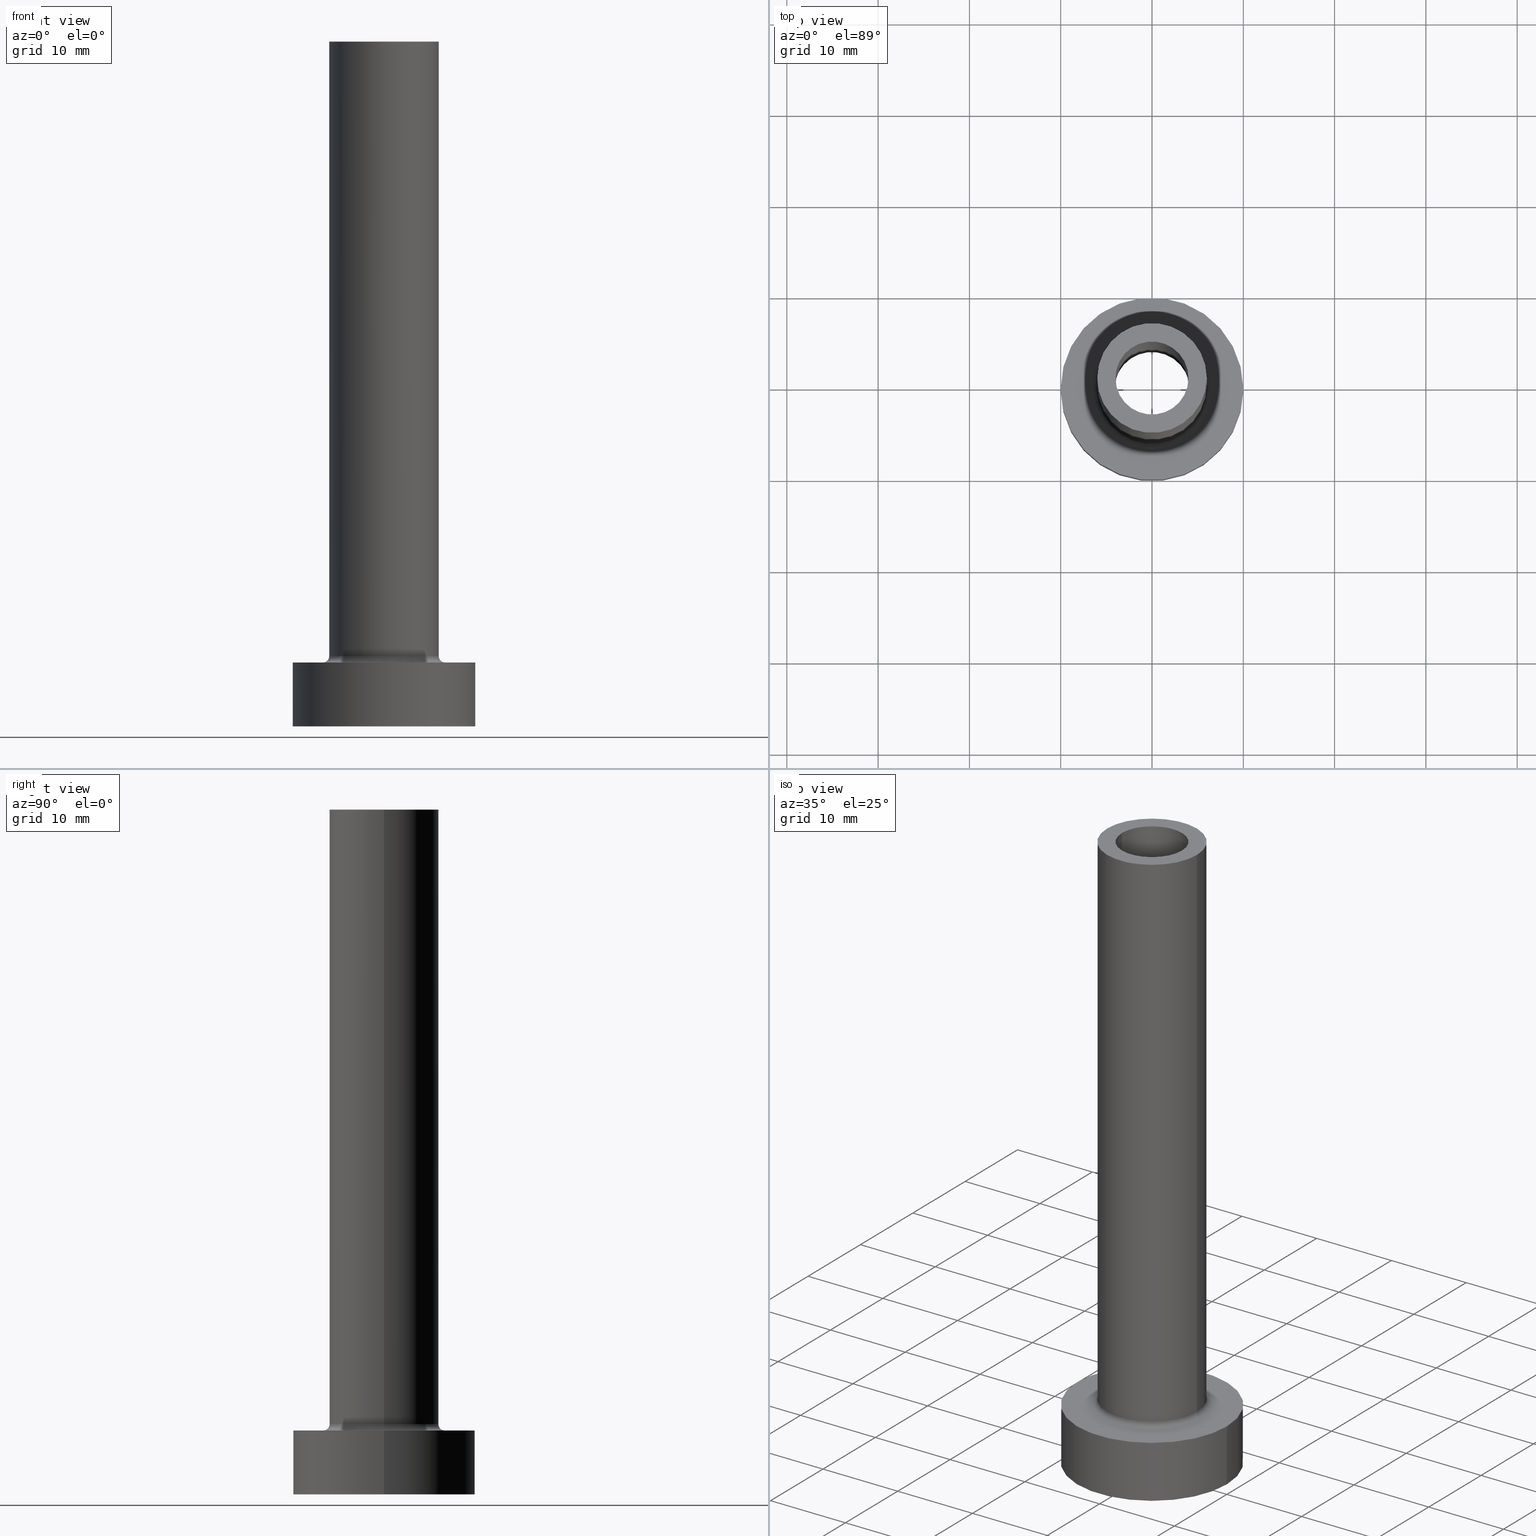
[diagram: canonical four-view strip — front | top / right | iso, engineering-drawing reading convention]
A machine part, canonical four-view strip (front | top / right | iso — engineering-drawing reading convention). The complete STEP part file that produces these views, byte-faithful:
ISO-10303-21;
HEADER;
FILE_DESCRIPTION (( 'STEP AP203' ),
    '1' );
FILE_NAME ('ccd0.STEP',
    '2023-02-13T09:11:31',
    ( '' ),
    ( '' ),
    'SwSTEP 2.0',
    'SolidWorks 2019',
    '' );
FILE_SCHEMA (( 'CONFIG_CONTROL_DESIGN' ));
ENDSEC;

DATA;
#1 = DIRECTION ( 'NONE',  ( -0.000000000000000000, -0.000000000000000000, -1.000000000000000000 ) ) ;
#2 = EDGE_CURVE ( 'NONE', #281, #367, #278, .T. ) ;
#3 = FACE_OUTER_BOUND ( 'NONE', #457, .T. ) ;
#4 = CARTESIAN_POINT ( 'NONE',  ( 0.000000000000000000, 0.000000000000000000, 75.00000000000001421 ) ) ;
#5 = AXIS2_PLACEMENT_3D ( 'NONE', #350, #36, #31 ) ;
#6 =( LENGTH_UNIT ( ) NAMED_UNIT ( * ) SI_UNIT ( .MILLI., .METRE. ) );
#7 = DIRECTION ( 'NONE',  ( 0.000000000000000000, 0.000000000000000000, 1.000000000000000000 ) ) ;
#8 = DIRECTION ( 'NONE',  ( -0.000000000000000000, -0.000000000000000000, -1.000000000000000000 ) ) ;
#9 = APPROVAL_DATE_TIME ( #189, #19 ) ;
#10 = ADVANCED_FACE ( 'NONE', ( #103 ), #384, .F. ) ;
#11 = CIRCLE ( 'NONE', #159, 4.150000000000000355 ) ;
#12 = LOCAL_TIME ( 10, 11, 31.00000000000000000, #228 ) ;
#13 = CARTESIAN_POINT ( 'NONE',  ( 0.000000000000000000, 0.000000000000000000, 0.000000000000000000 ) ) ;
#14 = ORIENTED_EDGE ( 'NONE', *, *, #193, .T. ) ;
#15 = PRODUCT_RELATED_PRODUCT_CATEGORY ( 'detail', '', ( #50 ) ) ;
#16 = COORDINATED_UNIVERSAL_TIME_OFFSET ( 1, 0, .AHEAD. ) ;
#17 = FACE_OUTER_BOUND ( 'NONE', #59, .T. ) ;
#18 = ORIENTED_EDGE ( 'NONE', *, *, #160, .F. ) ;
#19 = APPROVAL ( #115, 'NEUR�EN�' ) ;
#20 = DIRECTION ( 'NONE',  ( 0.000000000000000000, 0.000000000000000000, 1.000000000000000000 ) ) ;
#21 = VERTEX_POINT ( 'NONE', #172 ) ;
#22 = PERSON_AND_ORGANIZATION ( #227, #275 ) ;
#23 = AXIS2_PLACEMENT_3D ( 'NONE', #130, #20, #272 ) ;
#24 = DIRECTION ( 'NONE',  ( 1.000000000000000000, 0.000000000000000000, 0.000000000000000000 ) ) ;
#25 = ORIENTED_EDGE ( 'NONE', *, *, #377, .F. ) ;
#26 = APPROVAL_STATUS ( 'not_yet_approved' ) ;
#27 = CARTESIAN_POINT ( 'NONE',  ( 0.000000000000000000, 0.000000000000000000, 30.00000000000001421 ) ) ;
#28 = EDGE_LOOP ( 'NONE', ( #146, #206, #85, #25 ) ) ;
#29 = CIRCLE ( 'NONE', #436, 6.000000000000000888 ) ;
#30 = ORIENTED_EDGE ( 'NONE', *, *, #442, .T. ) ;
#31 = DIRECTION ( 'NONE',  ( 1.000000000000000000, 0.000000000000000000, 0.000000000000000000 ) ) ;
#32 = CC_DESIGN_APPROVAL ( #152, ( #296 ) ) ;
#33 = CC_DESIGN_PERSON_AND_ORGANIZATION_ASSIGNMENT ( #92, #126, ( #117 ) ) ;
#34 = DIRECTION ( 'NONE',  ( -1.000000000000000000, 0.000000000000000000, 0.000000000000000000 ) ) ;
#35 = EDGE_CURVE ( 'NONE', #157, #337, #100, .T. ) ;
#36 = DIRECTION ( 'NONE',  ( 0.000000000000000000, 0.000000000000000000, 1.000000000000000000 ) ) ;
#37 = TOROIDAL_SURFACE ( 'NONE', #295, 6.700000000000001066, 0.6999999999999999556 ) ;
#38 = LINE ( 'NONE', #179, #453 ) ;
#39 = PERSON_AND_ORGANIZATION ( #227, #275 ) ;
#40 = LINE ( 'NONE', #438, #78 ) ;
#41 = DIRECTION ( 'NONE',  ( 0.000000000000000000, 0.000000000000000000, 1.000000000000000000 ) ) ;
#42 = AXIS2_PLACEMENT_3D ( 'NONE', #394, #284, #34 ) ;
#43 = CARTESIAN_POINT ( 'NONE',  ( -6.000000000000000888, 0.000000000000000000, 75.00000000000001421 ) ) ;
#44 = CARTESIAN_POINT ( 'NONE',  ( 6.000000000000000888, 7.347880794884120722E-16, 75.00000000000001421 ) ) ;
#45 =( NAMED_UNIT ( * ) SI_UNIT ( $, .STERADIAN. ) SOLID_ANGLE_UNIT ( ) );
#46 = EDGE_CURVE ( 'NONE', #216, #410, #40, .T. ) ;
#47 = CYLINDRICAL_SURFACE ( 'NONE', #114, 4.000000000000000000 ) ;
#48 = CALENDAR_DATE ( 2023, 13, 2 ) ;
#49 = ORIENTED_EDGE ( 'NONE', *, *, #63, .F. ) ;
#50 = PRODUCT ( 'ccd0', 'ccd0', '', ( #154 ) ) ;
#51 = CIRCLE ( 'NONE', #86, 10.00000000000000000 ) ;
#52 = LOCAL_TIME ( 10, 11, 31.00000000000000000, #16 ) ;
#53 = ORIENTED_EDGE ( 'NONE', *, *, #433, .T. ) ;
#54 = EDGE_CURVE ( 'NONE', #157, #244, #385, .T. ) ;
#55 = EDGE_LOOP ( 'NONE', ( #18, #351 ) ) ;
#56 = APPROVAL_STATUS ( 'not_yet_approved' ) ;
#57 = AXIS2_PLACEMENT_3D ( 'NONE', #329, #1, #288 ) ;
#58 = DIRECTION ( 'NONE',  ( 1.000000000000000000, 0.000000000000000000, 0.000000000000000000 ) ) ;
#59 = EDGE_LOOP ( 'NONE', ( #124, #321, #96, #233 ) ) ;
#60 = VECTOR ( 'NONE', #441, 1000.000000000000000 ) ;
#61 = DIRECTION ( 'NONE',  ( 0.000000000000000000, 0.000000000000000000, 1.000000000000000000 ) ) ;
#62 = ORIENTED_EDGE ( 'NONE', *, *, #209, .F. ) ;
#63 = EDGE_CURVE ( 'NONE', #444, #281, #140, .T. ) ;
#64 = EDGE_LOOP ( 'NONE', ( #452, #273 ) ) ;
#65 = DIRECTION ( 'NONE',  ( -0.000000000000000000, -0.000000000000000000, -1.000000000000000000 ) ) ;
#66 = CC_DESIGN_PERSON_AND_ORGANIZATION_ASSIGNMENT ( #297, #333, ( #296 ) ) ;
#67 = FACE_BOUND ( 'NONE', #264, .T. ) ;
#68 = VERTEX_POINT ( 'NONE', #255 ) ;
#69 = VECTOR ( 'NONE', #323, 1000.000000000000000 ) ;
#70 = DIRECTION ( 'NONE',  ( 0.000000000000000000, 0.000000000000000000, 1.000000000000000000 ) ) ;
#71 = DIRECTION ( 'NONE',  ( 1.000000000000000000, 0.000000000000000000, 0.000000000000000000 ) ) ;
#72 = AXIS2_PLACEMENT_3D ( 'NONE', #395, #73, #346 ) ;
#73 = DIRECTION ( 'NONE',  ( -0.000000000000000000, -0.000000000000000000, -1.000000000000000000 ) ) ;
#74 = LOCAL_TIME ( 10, 11, 31.00000000000000000, #196 ) ;
#75 = ADVANCED_FACE ( 'NONE', ( #225 ), #47, .F. ) ;
#76 = DIRECTION ( 'NONE',  ( 0.000000000000000000, 0.000000000000000000, 1.000000000000000000 ) ) ;
#77 = CARTESIAN_POINT ( 'NONE',  ( 0.000000000000000000, 0.000000000000000000, 75.00000000000001421 ) ) ;
#78 = VECTOR ( 'NONE', #83, 1000.000000000000000 ) ;
#79 = CARTESIAN_POINT ( 'NONE',  ( 0.000000000000000000, 0.000000000000000000, 0.000000000000000000 ) ) ;
#80 = CIRCLE ( 'NONE', #23, 4.000000000000000000 ) ;
#81 = ADVANCED_FACE ( 'NONE', ( #192 ), #294, .T. ) ;
#82 = LINE ( 'NONE', #43, #69 ) ;
#83 = DIRECTION ( 'NONE',  ( 0.000000000000000000, 0.000000000000000000, -1.000000000000000000 ) ) ;
#84 = DIRECTION ( 'NONE',  ( 1.000000000000000000, 0.000000000000000000, 0.000000000000000000 ) ) ;
#85 = ORIENTED_EDGE ( 'NONE', *, *, #280, .T. ) ;
#86 = AXIS2_PLACEMENT_3D ( 'NONE', #320, #343, #245 ) ;
#87 = FACE_BOUND ( 'NONE', #64, .T. ) ;
#88 = ORIENTED_EDGE ( 'NONE', *, *, #183, .T. ) ;
#89 = CALENDAR_DATE ( 2023, 13, 2 ) ;
#90 = CARTESIAN_POINT ( 'NONE',  ( -10.00000000000000000, 0.000000000000000000, 7.000000000000000000 ) ) ;
#91 = ORIENTED_EDGE ( 'NONE', *, *, #107, .T. ) ;
#92 = PERSON_AND_ORGANIZATION ( #227, #275 ) ;
#93 = DIRECTION ( 'NONE',  ( 1.000000000000000000, 0.000000000000000000, -0.000000000000000000 ) ) ;
#94 = ORIENTED_EDGE ( 'NONE', *, *, #341, .T. ) ;
#95 = CC_DESIGN_APPROVAL ( #435, ( #117 ) ) ;
#96 = ORIENTED_EDGE ( 'NONE', *, *, #46, .T. ) ;
#97 = DIRECTION ( 'NONE',  ( 0.000000000000000000, 0.000000000000000000, 1.000000000000000000 ) ) ;
#98 = PRODUCT_DEFINITION ( 'NEZN�M�', '', #296, #266 ) ;
#99 = VERTEX_POINT ( 'NONE', #324 ) ;
#100 = LINE ( 'NONE', #406, #214 ) ;
#101 = AXIS2_PLACEMENT_3D ( 'NONE', #158, #304, #163 ) ;
#102 = DIRECTION ( 'NONE',  ( 1.000000000000000000, 0.000000000000000000, 0.000000000000000000 ) ) ;
#103 = FACE_OUTER_BOUND ( 'NONE', #199, .T. ) ;
#104 = PRODUCT_DEFINITION_SHAPE ( 'NONE', 'NONE',  #98 ) ;
#105 = DIRECTION ( 'NONE',  ( -1.000000000000000000, 0.000000000000000000, 0.000000000000000000 ) ) ;
#106 = ORIENTED_EDGE ( 'NONE', *, *, #2, .F. ) ;
#107 = EDGE_CURVE ( 'NONE', #99, #367, #165, .T. ) ;
#108 = CARTESIAN_POINT ( 'NONE',  ( 0.000000000000000000, 0.000000000000000000, 7.000000000000000000 ) ) ;
#109 = DIRECTION ( 'NONE',  ( 1.224646799147353207E-16, 1.000000000000000000, -0.000000000000000000 ) ) ;
#110 = AXIS2_PLACEMENT_3D ( 'NONE', #77, #8, #223 ) ;
#111 = CALENDAR_DATE ( 2023, 13, 2 ) ;
#112 = DIRECTION ( 'NONE',  ( 1.000000000000000000, 0.000000000000000000, 0.000000000000000000 ) ) ;
#113 = FACE_BOUND ( 'NONE', #55, .T. ) ;
#114 = AXIS2_PLACEMENT_3D ( 'NONE', #4, #118, #190 ) ;
#115 = APPROVAL_STATUS ( 'not_yet_approved' ) ;
#116 = TOROIDAL_SURFACE ( 'NONE', #5, 6.700000000000001066, 0.6999999999999999556 ) ;
#117 = SECURITY_CLASSIFICATION ( '', '', #303 ) ;
#118 = DIRECTION ( 'NONE',  ( 0.000000000000000000, 0.000000000000000000, -1.000000000000000000 ) ) ;
#119 = PERSON_AND_ORGANIZATION_ROLE ( 'creator' ) ;
#120 = PLANE ( 'NONE',  #340 ) ;
#121 = UNCERTAINTY_MEASURE_WITH_UNIT (LENGTH_MEASURE( 1.000000000000000082E-05 ), #6, 'distance_accuracy_value', 'NONE');
#122 = ORIENTED_EDGE ( 'NONE', *, *, #54, .T. ) ;
#123 = DATE_AND_TIME ( #364, #12 ) ;
#124 = ORIENTED_EDGE ( 'NONE', *, *, #299, .F. ) ;
#125 = AXIS2_PLACEMENT_3D ( 'NONE', #188, #153, #112 ) ;
#126 = PERSON_AND_ORGANIZATION_ROLE ( 'classification_officer' ) ;
#127 = CARTESIAN_POINT ( 'NONE',  ( 0.000000000000000000, 0.000000000000000000, 30.00000000000001421 ) ) ;
#128 = ORIENTED_EDGE ( 'NONE', *, *, #35, .F. ) ;
#129 = DATE_TIME_ROLE ( 'creation_date' ) ;
#130 = CARTESIAN_POINT ( 'NONE',  ( 0.000000000000000000, 0.000000000000000000, 30.00000000000001421 ) ) ;
#131 = VERTEX_POINT ( 'NONE', #398 ) ;
#132 = EDGE_CURVE ( 'NONE', #21, #305, #29, .T. ) ;
#133 = APPROVAL_DATE_TIME ( #191, #435 ) ;
#134 = CARTESIAN_POINT ( 'NONE',  ( 0.000000000000000000, 0.000000000000000000, 30.00000000000001421 ) ) ;
#135 = ORIENTED_EDGE ( 'NONE', *, *, #370, .T. ) ;
#136 = LINE ( 'NONE', #171, #426 ) ;
#137 = LOCAL_TIME ( 10, 11, 31.00000000000000000, #362 ) ;
#138 = EDGE_CURVE ( 'NONE', #68, #197, #287, .T. ) ;
#139 = DIRECTION ( 'NONE',  ( 0.000000000000000000, 0.000000000000000000, 1.000000000000000000 ) ) ;
#140 = CIRCLE ( 'NONE', #402, 0.7000000000000000666 ) ;
#141 = LINE ( 'NONE', #382, #306 ) ;
#142 = CYLINDRICAL_SURFACE ( 'NONE', #319, 10.00000000000000000 ) ;
#143 = CIRCLE ( 'NONE', #404, 4.000000000000000000 ) ;
#144 = FACE_OUTER_BOUND ( 'NONE', #285, .T. ) ;
#145 = EDGE_CURVE ( 'NONE', #305, #444, #149, .T. ) ;
#146 = ORIENTED_EDGE ( 'NONE', *, *, #54, .F. ) ;
#147 = APPLICATION_CONTEXT ( 'configuration controlled 3d designs of mechanical parts and assemblies' ) ;
#148 = PERSON_AND_ORGANIZATION ( #227, #275 ) ;
#149 = LINE ( 'NONE', #44, #60 ) ;
#150 = CIRCLE ( 'NONE', #427, 6.700000000000001066 ) ;
#151 = APPLICATION_PROTOCOL_DEFINITION ( 'international standard', 'config_control_design', 1994, #147 ) ;
#152 = APPROVAL ( #56, 'NEUR�EN�' ) ;
#153 = DIRECTION ( 'NONE',  ( 0.000000000000000000, 0.000000000000000000, 1.000000000000000000 ) ) ;
#154 = MECHANICAL_CONTEXT ( 'NONE', #147, 'mechanical' ) ;
#155 = DIRECTION ( 'NONE',  ( 0.000000000000000000, -1.000000000000000000, 0.000000000000000000 ) ) ;
#156 = ADVANCED_FACE ( 'NONE', ( #257 ), #400, .T. ) ;
#157 = VERTEX_POINT ( 'NONE', #327 ) ;
#158 = CARTESIAN_POINT ( 'NONE',  ( 0.000000000000000000, 0.000000000000000000, 7.000000000000000000 ) ) ;
#159 = AXIS2_PLACEMENT_3D ( 'NONE', #251, #243, #175 ) ;
#160 = EDGE_CURVE ( 'NONE', #197, #68, #282, .T. ) ;
#161 = ORIENTED_EDGE ( 'NONE', *, *, #242, .F. ) ;
#162 = APPROVAL_DATE_TIME ( #123, #152 ) ;
#163 = DIRECTION ( 'NONE',  ( 1.000000000000000000, 0.000000000000000000, 0.000000000000000000 ) ) ;
#164 = ORIENTED_EDGE ( 'NONE', *, *, #138, .T. ) ;
#165 = CIRCLE ( 'NONE', #173, 0.7000000000000000666 ) ;
#166 = DIRECTION ( 'NONE',  ( -0.000000000000000000, -0.000000000000000000, -1.000000000000000000 ) ) ;
#167 = EDGE_LOOP ( 'NONE', ( #342, #30 ) ) ;
#168 = APPLICATION_CONTEXT ( 'configuration controlled 3d designs of mechanical parts and assemblies' ) ;
#169 = FACE_OUTER_BOUND ( 'NONE', #448, .T. ) ;
#170 = CC_DESIGN_APPROVAL ( #19, ( #98 ) ) ;
#171 = CARTESIAN_POINT ( 'NONE',  ( 4.000000000000000000, 4.898587196589411843E-16, 75.00000000000001421 ) ) ;
#172 = CARTESIAN_POINT ( 'NONE',  ( -6.000000000000000888, 0.000000000000000000, 75.00000000000001421 ) ) ;
#173 = AXIS2_PLACEMENT_3D ( 'NONE', #185, #109, #182 ) ;
#174 = CARTESIAN_POINT ( 'NONE',  ( 4.150000000000000355, 5.082284216461515156E-16, 41.73797256769670838 ) ) ;
#175 = DIRECTION ( 'NONE',  ( 1.000000000000000000, 0.000000000000000000, 0.000000000000000000 ) ) ;
#176 = CIRCLE ( 'NONE', #369, 6.000000000000000888 ) ;
#177 = EDGE_CURVE ( 'NONE', #286, #381, #80, .T. ) ;
#178 = ORIENTED_EDGE ( 'NONE', *, *, #2, .T. ) ;
#179 = CARTESIAN_POINT ( 'NONE',  ( -4.000000000000000000, 0.000000000000000000, 75.00000000000001421 ) ) ;
#180 = ORIENTED_EDGE ( 'NONE', *, *, #377, .T. ) ;
#181 = DIRECTION ( 'NONE',  ( 0.000000000000000000, 0.000000000000000000, 1.000000000000000000 ) ) ;
#182 = DIRECTION ( 'NONE',  ( -1.000000000000000000, 1.224646799147353454E-16, 0.000000000000000000 ) ) ;
#183 = EDGE_CURVE ( 'NONE', #216, #429, #396, .T. ) ;
#184 = DIRECTION ( 'NONE',  ( 0.000000000000000000, 0.000000000000000000, -1.000000000000000000 ) ) ;
#185 = CARTESIAN_POINT ( 'NONE',  ( -6.700000000000001066, 8.205133554287267548E-16, 7.699999999999998401 ) ) ;
#186 = AXIS2_PLACEMENT_3D ( 'NONE', #431, #97, #102 ) ;
#187 = CARTESIAN_POINT ( 'NONE',  ( 0.000000000000000000, 0.000000000000000000, 75.00000000000001421 ) ) ;
#188 = CARTESIAN_POINT ( 'NONE',  ( 0.000000000000000000, 0.000000000000000000, 75.00000000000001421 ) ) ;
#189 = DATE_AND_TIME ( #111, #137 ) ;
#190 = DIRECTION ( 'NONE',  ( -1.000000000000000000, 0.000000000000000000, 0.000000000000000000 ) ) ;
#191 = DATE_AND_TIME ( #48, #422 ) ;
#192 = FACE_OUTER_BOUND ( 'NONE', #271, .T. ) ;
#193 = EDGE_CURVE ( 'NONE', #418, #410, #240, .T. ) ;
#194 = ORIENTED_EDGE ( 'NONE', *, *, #183, .F. ) ;
#195 = AXIS2_PLACEMENT_3D ( 'NONE', #134, #263, #84 ) ;
#196 = COORDINATED_UNIVERSAL_TIME_OFFSET ( 1, 0, .AHEAD. ) ;
#197 = VERTEX_POINT ( 'NONE', #417 ) ;
#198 = DIRECTION ( 'NONE',  ( -1.000000000000000000, 0.000000000000000000, 0.000000000000000000 ) ) ;
#199 = EDGE_LOOP ( 'NONE', ( #88, #252, #14, #387 ) ) ;
#200 = ADVANCED_FACE ( 'NONE', ( #87, #309 ), #120, .F. ) ;
#201 = CARTESIAN_POINT ( 'NONE',  ( 0.000000000000000000, 0.000000000000000000, 7.000000000000000000 ) ) ;
#202 = ORIENTED_EDGE ( 'NONE', *, *, #107, .F. ) ;
#203 = CIRCLE ( 'NONE', #458, 6.000000000000000888 ) ;
#204 = ORIENTED_EDGE ( 'NONE', *, *, #347, .F. ) ;
#205 = CARTESIAN_POINT ( 'NONE',  ( 0.000000000000000000, 0.000000000000000000, 7.000000000000000000 ) ) ;
#206 = ORIENTED_EDGE ( 'NONE', *, *, #35, .T. ) ;
#207 = CARTESIAN_POINT ( 'NONE',  ( 0.000000000000000000, 0.000000000000000000, 7.699999999999998401 ) ) ;
#208 = CARTESIAN_POINT ( 'NONE',  ( 0.000000000000000000, 0.000000000000000000, 41.73797256769670838 ) ) ;
#209 = EDGE_CURVE ( 'NONE', #244, #157, #254, .T. ) ;
#210 = CIRCLE ( 'NONE', #186, 6.000000000000000888 ) ;
#211 = CARTESIAN_POINT ( 'NONE',  ( 0.000000000000000000, 0.000000000000000000, 30.00000000000001421 ) ) ;
#212 = DIRECTION ( 'NONE',  ( -1.000000000000000000, 0.000000000000000000, 0.000000000000000000 ) ) ;
#213 = EDGE_CURVE ( 'NONE', #429, #216, #412, .T. ) ;
#214 = VECTOR ( 'NONE', #366, 1000.000000000000000 ) ;
#215 = FACE_BOUND ( 'NONE', #267, .T. ) ;
#216 = VERTEX_POINT ( 'NONE', #230 ) ;
#217 = CARTESIAN_POINT ( 'NONE',  ( 0.000000000000000000, 0.000000000000000000, 75.00000000000001421 ) ) ;
#218 = AXIS2_PLACEMENT_3D ( 'NONE', #357, #334, #307 ) ;
#219 = DIRECTION ( 'NONE',  ( 1.000000000000000000, 0.000000000000000000, 0.000000000000000000 ) ) ;
#220 = DIRECTION ( 'NONE',  ( 1.000000000000000000, 0.000000000000000000, 0.000000000000000000 ) ) ;
#221 = ADVANCED_FACE ( 'NONE', ( #17 ), #446, .F. ) ;
#222 = PLANE ( 'NONE',  #380 ) ;
#223 = DIRECTION ( 'NONE',  ( -1.000000000000000000, 0.000000000000000000, 0.000000000000000000 ) ) ;
#224 = DIRECTION ( 'NONE',  ( 0.000000000000000000, 0.000000000000000000, 1.000000000000000000 ) ) ;
#225 = FACE_OUTER_BOUND ( 'NONE', #274, .T. ) ;
#226 = CARTESIAN_POINT ( 'NONE',  ( 0.000000000000000000, 0.000000000000000000, 7.000000000000000000 ) ) ;
#227 = PERSON ( 'NEUR�EN�', 'NEUR�EN�', 'NEUR�EN�', ('NEUR�EN�'), ('NEUR�EN�'), ('NEUR�EN�') ) ;
#228 = COORDINATED_UNIVERSAL_TIME_OFFSET ( 1, 0, .AHEAD. ) ;
#229 = CC_DESIGN_PERSON_AND_ORGANIZATION_ASSIGNMENT ( #378, #119, ( #296 ) ) ;
#230 = CARTESIAN_POINT ( 'NONE',  ( -4.150000000000000355, 0.000000000000000000, 30.00000000000001421 ) ) ;
#231 = ORIENTED_EDGE ( 'NONE', *, *, #242, .T. ) ;
#232 = APPROVAL_PERSON_ORGANIZATION ( #437, #19, #405 ) ;
#233 = ORIENTED_EDGE ( 'NONE', *, *, #260, .T. ) ;
#234 = CC_DESIGN_DATE_AND_TIME_ASSIGNMENT ( #414, #129, ( #98 ) ) ;
#235 = DATE_TIME_ROLE ( 'classification_date' ) ;
#236 = FACE_OUTER_BOUND ( 'NONE', #28, .T. ) ;
#237 = ORIENTED_EDGE ( 'NONE', *, *, #213, .F. ) ;
#238 = PERSON_AND_ORGANIZATION ( #227, #275 ) ;
#239 = ORIENTED_EDGE ( 'NONE', *, *, #160, .T. ) ;
#240 = CIRCLE ( 'NONE', #291, 4.150000000000000355 ) ;
#241 = ORIENTED_EDGE ( 'NONE', *, *, #383, .T. ) ;
#242 = EDGE_CURVE ( 'NONE', #131, #337, #360, .T. ) ;
#243 = DIRECTION ( 'NONE',  ( -0.000000000000000000, -0.000000000000000000, -1.000000000000000000 ) ) ;
#244 = VERTEX_POINT ( 'NONE', #90 ) ;
#245 = DIRECTION ( 'NONE',  ( 1.000000000000000000, 0.000000000000000000, 0.000000000000000000 ) ) ;
#246 = DIRECTION ( 'NONE',  ( 0.000000000000000000, 0.000000000000000000, -1.000000000000000000 ) ) ;
#247 = AXIS2_PLACEMENT_3D ( 'NONE', #389, #139, #428 ) ;
#248 = CARTESIAN_POINT ( 'NONE',  ( 4.000000000000000000, 4.898587196589411843E-16, 30.00000000000001421 ) ) ;
#249 = ADVANCED_FACE ( 'NONE', ( #236 ), #375, .T. ) ;
#250 = CARTESIAN_POINT ( 'NONE',  ( -6.700000000000001066, 8.205133554287267548E-16, 6.999999999999999112 ) ) ;
#251 = CARTESIAN_POINT ( 'NONE',  ( 0.000000000000000000, 0.000000000000000000, 0.000000000000000000 ) ) ;
#252 = ORIENTED_EDGE ( 'NONE', *, *, #299, .T. ) ;
#253 = CARTESIAN_POINT ( 'NONE',  ( 0.000000000000000000, 0.000000000000000000, 7.699999999999998401 ) ) ;
#254 = CIRCLE ( 'NONE', #101, 10.00000000000000000 ) ;
#255 = CARTESIAN_POINT ( 'NONE',  ( 4.000000000000000000, 4.898587196589411843E-16, 75.00000000000001421 ) ) ;
#256 = APPROVAL_PERSON_ORGANIZATION ( #22, #435, #368 ) ;
#257 = FACE_OUTER_BOUND ( 'NONE', #310, .T. ) ;
#258 = CARTESIAN_POINT ( 'NONE',  ( 4.150000000000000355, 5.082284216461515156E-16, 0.000000000000000000 ) ) ;
#259 = AXIS2_PLACEMENT_3D ( 'NONE', #270, #61, #415 ) ;
#260 = EDGE_CURVE ( 'NONE', #410, #418, #11, .T. ) ;
#261 = DIRECTION ( 'NONE',  ( 0.000000000000000000, 0.000000000000000000, 1.000000000000000000 ) ) ;
#262 = CALENDAR_DATE ( 2023, 13, 2 ) ;
#263 = DIRECTION ( 'NONE',  ( 0.000000000000000000, 0.000000000000000000, 1.000000000000000000 ) ) ;
#264 = EDGE_LOOP ( 'NONE', ( #449, #308 ) ) ;
#265 = CC_DESIGN_PERSON_AND_ORGANIZATION_ASSIGNMENT ( #148, #290, ( #50 ) ) ;
#266 = DESIGN_CONTEXT ( 'detailed design', #168, 'design' ) ;
#267 = EDGE_LOOP ( 'NONE', ( #178, #135 ) ) ;
#268 = AXIS2_PLACEMENT_3D ( 'NONE', #108, #181, #399 ) ;
#269 = MANIFOLD_SOLID_BREP ( 'Odebrat vysunut�m4', #365 ) ;
#270 = CARTESIAN_POINT ( 'NONE',  ( 0.000000000000000000, 0.000000000000000000, 0.000000000000000000 ) ) ;
#271 = EDGE_LOOP ( 'NONE', ( #425, #344, #53, #94 ) ) ;
#272 = DIRECTION ( 'NONE',  ( 1.000000000000000000, 0.000000000000000000, 0.000000000000000000 ) ) ;
#273 = ORIENTED_EDGE ( 'NONE', *, *, #177, .T. ) ;
#274 = EDGE_LOOP ( 'NONE', ( #339, #164, #379, #376 ) ) ;
#275 = ORGANIZATION ( 'NEUR�EN�', 'NEUR�EN�', '' ) ;
#276 = DIRECTION ( 'NONE',  ( -0.000000000000000000, -0.000000000000000000, -1.000000000000000000 ) ) ;
#277 = FACE_OUTER_BOUND ( 'NONE', #302, .T. ) ;
#278 = CIRCLE ( 'NONE', #72, 6.700000000000001066 ) ;
#279 = DIRECTION ( 'NONE',  ( 1.000000000000000000, 0.000000000000000000, 0.000000000000000000 ) ) ;
#280 = EDGE_CURVE ( 'NONE', #337, #131, #51, .T. ) ;
#281 = VERTEX_POINT ( 'NONE', #454 ) ;
#282 = CIRCLE ( 'NONE', #218, 4.000000000000000000 ) ;
#283 = CC_DESIGN_SECURITY_CLASSIFICATION ( #117, ( #296 ) ) ;
#284 = DIRECTION ( 'NONE',  ( 0.000000000000000000, 0.000000000000000000, -1.000000000000000000 ) ) ;
#285 = EDGE_LOOP ( 'NONE', ( #239, #416, #204, #373 ) ) ;
#286 = VERTEX_POINT ( 'NONE', #248 ) ;
#287 = CIRCLE ( 'NONE', #125, 4.000000000000000000 ) ;
#288 = DIRECTION ( 'NONE',  ( -1.000000000000000000, 0.000000000000000000, 0.000000000000000000 ) ) ;
#289 = ADVANCED_FACE ( 'NONE', ( #349 ), #142, .T. ) ;
#290 = PERSON_AND_ORGANIZATION_ROLE ( 'design_owner' ) ;
#291 = AXIS2_PLACEMENT_3D ( 'NONE', #13, #298, #24 ) ;
#292 = FACE_OUTER_BOUND ( 'NONE', #167, .T. ) ;
#293 = PERSON_AND_ORGANIZATION_ROLE ( 'creator' ) ;
#294 = CYLINDRICAL_SURFACE ( 'NONE', #57, 6.000000000000000888 ) ;
#295 = AXIS2_PLACEMENT_3D ( 'NONE', #253, #328, #397 ) ;
#296 = PRODUCT_DEFINITION_FORMATION_WITH_SPECIFIED_SOURCE ( 'LIBOVOLN�', '', #50, .NOT_KNOWN. ) ;
#297 = PERSON_AND_ORGANIZATION ( #227, #275 ) ;
#298 = DIRECTION ( 'NONE',  ( -0.000000000000000000, -0.000000000000000000, -1.000000000000000000 ) ) ;
#299 = EDGE_CURVE ( 'NONE', #429, #418, #313, .T. ) ;
#300 = SHAPE_DEFINITION_REPRESENTATION ( #104, #330 ) ;
#301 = DIRECTION ( 'NONE',  ( 0.000000000000000000, 0.000000000000000000, 1.000000000000000000 ) ) ;
#302 = EDGE_LOOP ( 'NONE', ( #161, #317 ) ) ;
#303 = SECURITY_CLASSIFICATION_LEVEL ( 'unclassified' ) ;
#304 = DIRECTION ( 'NONE',  ( 0.000000000000000000, 0.000000000000000000, 1.000000000000000000 ) ) ;
#305 = VERTEX_POINT ( 'NONE', #460 ) ;
#306 = VECTOR ( 'NONE', #65, 1000.000000000000000 ) ;
#307 = DIRECTION ( 'NONE',  ( 1.000000000000000000, 0.000000000000000000, 0.000000000000000000 ) ) ;
#308 = ORIENTED_EDGE ( 'NONE', *, *, #193, .F. ) ;
#309 = FACE_OUTER_BOUND ( 'NONE', #390, .T. ) ;
#310 = EDGE_LOOP ( 'NONE', ( #420, #413, #241, #392 ) ) ;
#311 = DIRECTION ( 'NONE',  ( 0.000000000000000000, 0.000000000000000000, -1.000000000000000000 ) ) ;
#312 = APPROVAL_PERSON_ORGANIZATION ( #238, #152, #372 ) ;
#313 = LINE ( 'NONE', #174, #439 ) ;
#314 = CC_DESIGN_PERSON_AND_ORGANIZATION_ASSIGNMENT ( #39, #293, ( #98 ) ) ;
#315 = CARTESIAN_POINT ( 'NONE',  ( -4.000000000000000000, 0.000000000000000000, 30.00000000000001421 ) ) ;
#316 = PLANE ( 'NONE',  #247 ) ;
#317 = ORIENTED_EDGE ( 'NONE', *, *, #280, .F. ) ;
#318 = EDGE_LOOP ( 'NONE', ( #202, #335, #461, #371 ) ) ;
#319 = AXIS2_PLACEMENT_3D ( 'NONE', #386, #166, #455 ) ;
#320 = CARTESIAN_POINT ( 'NONE',  ( 0.000000000000000000, 0.000000000000000000, 0.000000000000000000 ) ) ;
#321 = ORIENTED_EDGE ( 'NONE', *, *, #213, .T. ) ;
#322 = ADVANCED_FACE ( 'NONE', ( #67, #277 ), #316, .F. ) ;
#323 = DIRECTION ( 'NONE',  ( -0.000000000000000000, -0.000000000000000000, -1.000000000000000000 ) ) ;
#324 = CARTESIAN_POINT ( 'NONE',  ( -6.000000000000000888, 0.000000000000000000, 7.699999999999998401 ) ) ;
#325 = DIRECTION ( 'NONE',  ( 1.000000000000000000, 0.000000000000000000, 0.000000000000000000 ) ) ;
#326 = AXIS2_PLACEMENT_3D ( 'NONE', #79, #224, #219 ) ;
#327 = CARTESIAN_POINT ( 'NONE',  ( 10.00000000000000000, 1.224646799147353256E-15, 7.000000000000000000 ) ) ;
#328 = DIRECTION ( 'NONE',  ( 0.000000000000000000, 0.000000000000000000, 1.000000000000000000 ) ) ;
#329 = CARTESIAN_POINT ( 'NONE',  ( 0.000000000000000000, 0.000000000000000000, 75.00000000000001421 ) ) ;
#330 = ADVANCED_BREP_SHAPE_REPRESENTATION ( 'ccd0', ( #269, #326 ), #353 ) ;
#331 = PLANE ( 'NONE',  #268 ) ;
#332 = DIRECTION ( 'NONE',  ( 0.000000000000000000, 0.000000000000000000, 1.000000000000000000 ) ) ;
#333 = PERSON_AND_ORGANIZATION_ROLE ( 'design_supplier' ) ;
#334 = DIRECTION ( 'NONE',  ( 0.000000000000000000, 0.000000000000000000, 1.000000000000000000 ) ) ;
#335 = ORIENTED_EDGE ( 'NONE', *, *, #383, .F. ) ;
#336 = AXIS2_PLACEMENT_3D ( 'NONE', #226, #7, #363 ) ;
#337 = VERTEX_POINT ( 'NONE', #348 ) ;
#338 = DIRECTION ( 'NONE',  ( -0.000000000000000000, -0.000000000000000000, -1.000000000000000000 ) ) ;
#339 = ORIENTED_EDGE ( 'NONE', *, *, #358, .F. ) ;
#340 = AXIS2_PLACEMENT_3D ( 'NONE', #127, #301, #93 ) ;
#341 = EDGE_CURVE ( 'NONE', #99, #444, #210, .T. ) ;
#342 = ORIENTED_EDGE ( 'NONE', *, *, #132, .T. ) ;
#343 = DIRECTION ( 'NONE',  ( 0.000000000000000000, 0.000000000000000000, 1.000000000000000000 ) ) ;
#344 = ORIENTED_EDGE ( 'NONE', *, *, #132, .F. ) ;
#345 = FACE_OUTER_BOUND ( 'NONE', #318, .T. ) ;
#346 = DIRECTION ( 'NONE',  ( 1.000000000000000000, 0.000000000000000000, 0.000000000000000000 ) ) ;
#347 = EDGE_CURVE ( 'NONE', #381, #286, #143, .T. ) ;
#348 = CARTESIAN_POINT ( 'NONE',  ( 10.00000000000000000, 1.224646799147353256E-15, 0.000000000000000000 ) ) ;
#349 = FACE_OUTER_BOUND ( 'NONE', #352, .T. ) ;
#350 = CARTESIAN_POINT ( 'NONE',  ( 0.000000000000000000, 0.000000000000000000, 7.699999999999998401 ) ) ;
#351 = ORIENTED_EDGE ( 'NONE', *, *, #138, .F. ) ;
#352 = EDGE_LOOP ( 'NONE', ( #128, #62, #180, #231 ) ) ;
#353 =( GEOMETRIC_REPRESENTATION_CONTEXT ( 3 ) GLOBAL_UNCERTAINTY_ASSIGNED_CONTEXT ( ( #121 ) ) GLOBAL_UNIT_ASSIGNED_CONTEXT ( ( #6, #434, #45 ) ) REPRESENTATION_CONTEXT ( 'NONE', 'WORKASPACE' ) );
#354 = DIRECTION ( 'NONE',  ( 1.000000000000000000, 0.000000000000000000, -0.000000000000000000 ) ) ;
#355 = ADVANCED_FACE ( 'NONE', ( #144 ), #451, .F. ) ;
#356 = APPLICATION_PROTOCOL_DEFINITION ( 'international standard', 'config_control_design', 1994, #168 ) ;
#357 = CARTESIAN_POINT ( 'NONE',  ( 0.000000000000000000, 0.000000000000000000, 75.00000000000001421 ) ) ;
#358 = EDGE_CURVE ( 'NONE', #68, #286, #136, .T. ) ;
#359 = CARTESIAN_POINT ( 'NONE',  ( 4.150000000000000355, 5.082284216461515156E-16, 30.00000000000001421 ) ) ;
#360 = CIRCLE ( 'NONE', #259, 10.00000000000000000 ) ;
#361 = CARTESIAN_POINT ( 'NONE',  ( 0.000000000000000000, 0.000000000000000000, 75.00000000000001421 ) ) ;
#362 = COORDINATED_UNIVERSAL_TIME_OFFSET ( 1, 0, .AHEAD. ) ;
#363 = DIRECTION ( 'NONE',  ( 1.000000000000000000, 0.000000000000000000, 0.000000000000000000 ) ) ;
#364 = CALENDAR_DATE ( 2023, 13, 2 ) ;
#365 = CLOSED_SHELL ( 'NONE', ( #355, #10, #456, #156, #249, #289, #401, #322, #81, #408, #393, #221, #200, #75 ) ) ;
#366 = DIRECTION ( 'NONE',  ( -0.000000000000000000, -0.000000000000000000, -1.000000000000000000 ) ) ;
#367 = VERTEX_POINT ( 'NONE', #250 ) ;
#368 = APPROVAL_ROLE ( '' ) ;
#369 = AXIS2_PLACEMENT_3D ( 'NONE', #217, #261, #325 ) ;
#370 = EDGE_CURVE ( 'NONE', #367, #281, #150, .T. ) ;
#371 = ORIENTED_EDGE ( 'NONE', *, *, #370, .F. ) ;
#372 = APPROVAL_ROLE ( '' ) ;
#373 = ORIENTED_EDGE ( 'NONE', *, *, #430, .F. ) ;
#374 = COORDINATED_UNIVERSAL_TIME_OFFSET ( 1, 0, .AHEAD. ) ;
#375 = CYLINDRICAL_SURFACE ( 'NONE', #421, 10.00000000000000000 ) ;
#376 = ORIENTED_EDGE ( 'NONE', *, *, #177, .F. ) ;
#377 = EDGE_CURVE ( 'NONE', #244, #131, #141, .T. ) ;
#378 = PERSON_AND_ORGANIZATION ( #227, #275 ) ;
#379 = ORIENTED_EDGE ( 'NONE', *, *, #430, .T. ) ;
#380 = AXIS2_PLACEMENT_3D ( 'NONE', #187, #41, #354 ) ;
#381 = VERTEX_POINT ( 'NONE', #315 ) ;
#382 = CARTESIAN_POINT ( 'NONE',  ( -10.00000000000000000, 0.000000000000000000, 7.000000000000000000 ) ) ;
#383 = EDGE_CURVE ( 'NONE', #444, #99, #203, .T. ) ;
#384 = CYLINDRICAL_SURFACE ( 'NONE', #409, 4.150000000000000355 ) ;
#385 = CIRCLE ( 'NONE', #336, 10.00000000000000000 ) ;
#386 = CARTESIAN_POINT ( 'NONE',  ( 0.000000000000000000, 0.000000000000000000, 7.000000000000000000 ) ) ;
#387 = ORIENTED_EDGE ( 'NONE', *, *, #46, .F. ) ;
#388 = AXIS2_PLACEMENT_3D ( 'NONE', #443, #411, #198 ) ;
#389 = CARTESIAN_POINT ( 'NONE',  ( 0.000000000000000000, 0.000000000000000000, 0.000000000000000000 ) ) ;
#390 = EDGE_LOOP ( 'NONE', ( #194, #237 ) ) ;
#391 = DIRECTION ( 'NONE',  ( 0.000000000000000000, 0.000000000000000000, 1.000000000000000000 ) ) ;
#392 = ORIENTED_EDGE ( 'NONE', *, *, #433, .F. ) ;
#393 = ADVANCED_FACE ( 'NONE', ( #345 ), #116, .F. ) ;
#394 = CARTESIAN_POINT ( 'NONE',  ( 0.000000000000000000, 0.000000000000000000, 75.00000000000001421 ) ) ;
#395 = CARTESIAN_POINT ( 'NONE',  ( 0.000000000000000000, 0.000000000000000000, 7.000000000000000000 ) ) ;
#396 = CIRCLE ( 'NONE', #447, 4.150000000000000355 ) ;
#397 = DIRECTION ( 'NONE',  ( 1.000000000000000000, 0.000000000000000000, 0.000000000000000000 ) ) ;
#398 = CARTESIAN_POINT ( 'NONE',  ( -10.00000000000000000, 0.000000000000000000, 0.000000000000000000 ) ) ;
#399 = DIRECTION ( 'NONE',  ( 1.000000000000000000, 0.000000000000000000, -0.000000000000000000 ) ) ;
#400 = CYLINDRICAL_SURFACE ( 'NONE', #110, 6.000000000000000888 ) ;
#401 = ADVANCED_FACE ( 'NONE', ( #215, #169 ), #331, .T. ) ;
#402 = AXIS2_PLACEMENT_3D ( 'NONE', #403, #155, #407 ) ;
#403 = CARTESIAN_POINT ( 'NONE',  ( 6.700000000000001066, 0.000000000000000000, 7.699999999999998401 ) ) ;
#404 = AXIS2_PLACEMENT_3D ( 'NONE', #211, #70, #71 ) ;
#405 = APPROVAL_ROLE ( '' ) ;
#406 = CARTESIAN_POINT ( 'NONE',  ( 10.00000000000000000, 1.224646799147353256E-15, 7.000000000000000000 ) ) ;
#407 = DIRECTION ( 'NONE',  ( 0.000000000000000000, 0.000000000000000000, -1.000000000000000000 ) ) ;
#408 = ADVANCED_FACE ( 'NONE', ( #113, #292 ), #222, .T. ) ;
#409 = AXIS2_PLACEMENT_3D ( 'NONE', #208, #246, #212 ) ;
#410 = VERTEX_POINT ( 'NONE', #432 ) ;
#411 = DIRECTION ( 'NONE',  ( 0.000000000000000000, 0.000000000000000000, -1.000000000000000000 ) ) ;
#412 = CIRCLE ( 'NONE', #195, 4.150000000000000355 ) ;
#413 = ORIENTED_EDGE ( 'NONE', *, *, #145, .T. ) ;
#414 = DATE_AND_TIME ( #262, #74 ) ;
#415 = DIRECTION ( 'NONE',  ( 1.000000000000000000, 0.000000000000000000, 0.000000000000000000 ) ) ;
#416 = ORIENTED_EDGE ( 'NONE', *, *, #358, .T. ) ;
#417 = CARTESIAN_POINT ( 'NONE',  ( -4.000000000000000000, 0.000000000000000000, 75.00000000000001421 ) ) ;
#418 = VERTEX_POINT ( 'NONE', #258 ) ;
#419 = CC_DESIGN_DATE_AND_TIME_ASSIGNMENT ( #445, #235, ( #117 ) ) ;
#420 = ORIENTED_EDGE ( 'NONE', *, *, #442, .F. ) ;
#421 = AXIS2_PLACEMENT_3D ( 'NONE', #201, #338, #105 ) ;
#422 = LOCAL_TIME ( 10, 11, 31.00000000000000000, #374 ) ;
#423 = DIRECTION ( 'NONE',  ( 1.000000000000000000, 0.000000000000000000, 0.000000000000000000 ) ) ;
#424 = DIRECTION ( 'NONE',  ( 0.000000000000000000, 0.000000000000000000, -1.000000000000000000 ) ) ;
#425 = ORIENTED_EDGE ( 'NONE', *, *, #145, .F. ) ;
#426 = VECTOR ( 'NONE', #424, 1000.000000000000000 ) ;
#427 = AXIS2_PLACEMENT_3D ( 'NONE', #205, #276, #423 ) ;
#428 = DIRECTION ( 'NONE',  ( 1.000000000000000000, 0.000000000000000000, -0.000000000000000000 ) ) ;
#429 = VERTEX_POINT ( 'NONE', #359 ) ;
#430 = EDGE_CURVE ( 'NONE', #197, #381, #38, .T. ) ;
#431 = CARTESIAN_POINT ( 'NONE',  ( 0.000000000000000000, 0.000000000000000000, 7.699999999999998401 ) ) ;
#432 = CARTESIAN_POINT ( 'NONE',  ( -4.150000000000000355, 0.000000000000000000, 0.000000000000000000 ) ) ;
#433 = EDGE_CURVE ( 'NONE', #21, #99, #82, .T. ) ;
#434 =( NAMED_UNIT ( * ) PLANE_ANGLE_UNIT ( ) SI_UNIT ( $, .RADIAN. ) );
#435 = APPROVAL ( #26, 'NEUR�EN�' ) ;
#436 = AXIS2_PLACEMENT_3D ( 'NONE', #361, #76, #220 ) ;
#437 = PERSON_AND_ORGANIZATION ( #227, #275 ) ;
#438 = CARTESIAN_POINT ( 'NONE',  ( -4.150000000000000355, 0.000000000000000000, 41.73797256769670838 ) ) ;
#439 = VECTOR ( 'NONE', #311, 1000.000000000000000 ) ;
#440 = CARTESIAN_POINT ( 'NONE',  ( 6.000000000000000888, 7.347880794884120722E-16, 7.699999999999998401 ) ) ;
#441 = DIRECTION ( 'NONE',  ( -0.000000000000000000, -0.000000000000000000, -1.000000000000000000 ) ) ;
#442 = EDGE_CURVE ( 'NONE', #305, #21, #176, .T. ) ;
#443 = CARTESIAN_POINT ( 'NONE',  ( 0.000000000000000000, 0.000000000000000000, 41.73797256769670838 ) ) ;
#444 = VERTEX_POINT ( 'NONE', #440 ) ;
#445 = DATE_AND_TIME ( #89, #52 ) ;
#446 = CYLINDRICAL_SURFACE ( 'NONE', #388, 4.150000000000000355 ) ;
#447 = AXIS2_PLACEMENT_3D ( 'NONE', #27, #332, #58 ) ;
#448 = EDGE_LOOP ( 'NONE', ( #459, #122 ) ) ;
#449 = ORIENTED_EDGE ( 'NONE', *, *, #260, .F. ) ;
#450 = ORIENTED_EDGE ( 'NONE', *, *, #341, .F. ) ;
#451 = CYLINDRICAL_SURFACE ( 'NONE', #42, 4.000000000000000000 ) ;
#452 = ORIENTED_EDGE ( 'NONE', *, *, #347, .T. ) ;
#453 = VECTOR ( 'NONE', #184, 1000.000000000000000 ) ;
#454 = CARTESIAN_POINT ( 'NONE',  ( 6.700000000000001066, 0.000000000000000000, 6.999999999999999112 ) ) ;
#455 = DIRECTION ( 'NONE',  ( -1.000000000000000000, 0.000000000000000000, 0.000000000000000000 ) ) ;
#456 = ADVANCED_FACE ( 'NONE', ( #3 ), #37, .F. ) ;
#457 = EDGE_LOOP ( 'NONE', ( #450, #91, #106, #49 ) ) ;
#458 = AXIS2_PLACEMENT_3D ( 'NONE', #207, #391, #279 ) ;
#459 = ORIENTED_EDGE ( 'NONE', *, *, #209, .T. ) ;
#460 = CARTESIAN_POINT ( 'NONE',  ( 6.000000000000000888, 7.347880794884120722E-16, 75.00000000000001421 ) ) ;
#461 = ORIENTED_EDGE ( 'NONE', *, *, #63, .T. ) ;
ENDSEC;
END-ISO-10303-21;
